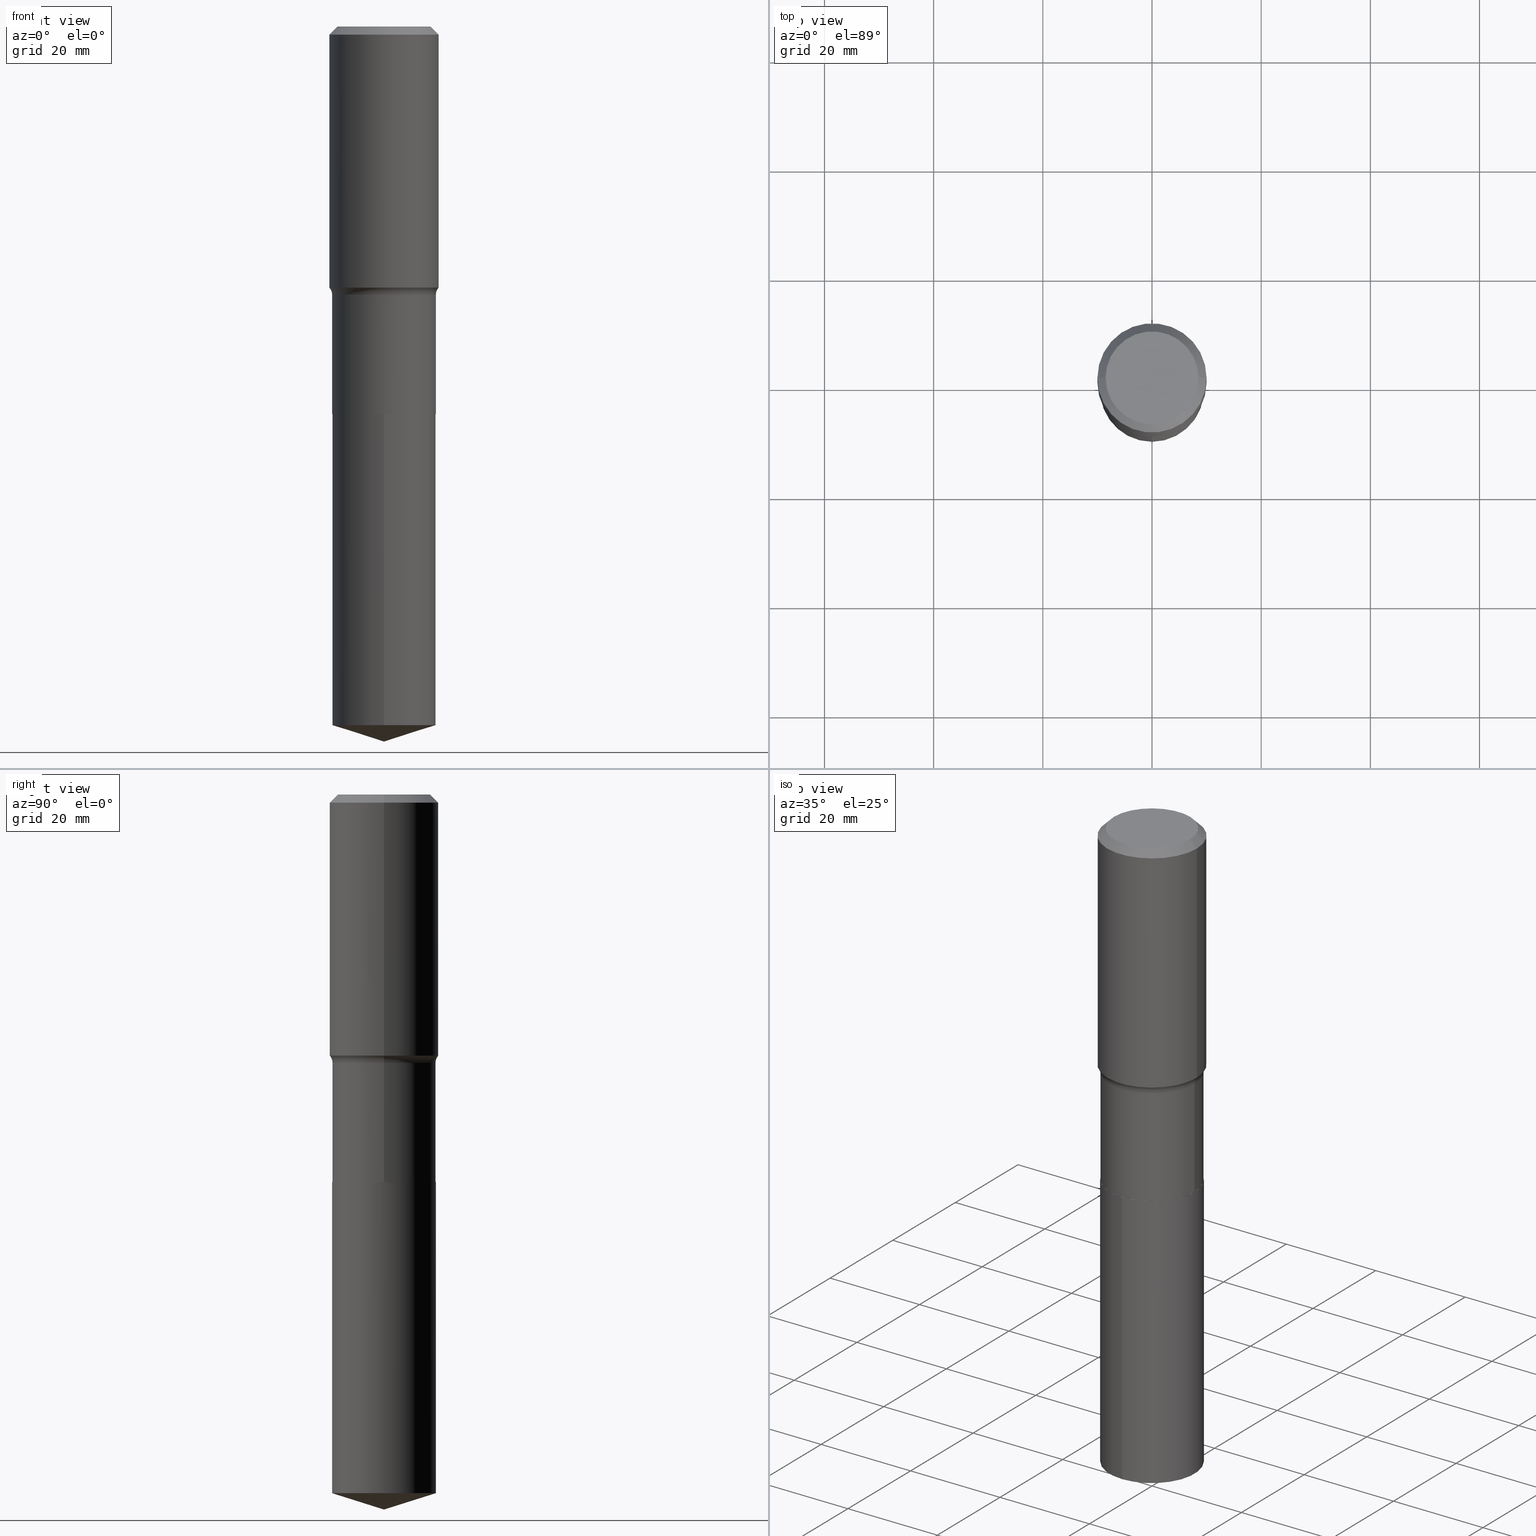
[diagram: canonical four-view strip — front | top / right | iso, engineering-drawing reading convention]
A machine part, canonical four-view strip (front | top / right | iso — engineering-drawing reading convention). The complete STEP part file that produces these views, byte-faithful:
ISO-10303-21;
HEADER;
FILE_DESCRIPTION (( 'STEP AP203' ),
    '1' );
FILE_NAME ('63210.STEP',
    '2024-04-19T15:06:42',
    ( '' ),
    ( '' ),
    'SwSTEP 2.0',
    'SolidWorks 2023',
    '' );
FILE_SCHEMA (( 'CONFIG_CONTROL_DESIGN' ));
ENDSEC;

DATA;
#1 = LOCAL_TIME ( 11, 6, 42.00000000000000000, #102 ) ;
#2 = DATE_AND_TIME ( #339, #312 ) ;
#3 = PERSON_AND_ORGANIZATION ( #443, #316 ) ;
#4 = CIRCLE ( 'NONE', #373, 0.3937000000000000499 ) ;
#5 = AXIS2_PLACEMENT_3D ( 'NONE', #347, #419, #97 ) ;
#6 = ADVANCED_FACE ( 'NONE', ( #117 ), #229, .T. ) ;
#7 = ORIENTED_EDGE ( 'NONE', *, *, #37, .F. ) ;
#8 = ORIENTED_EDGE ( 'NONE', *, *, #349, .F. ) ;
#9 = DIRECTION ( 'NONE',  ( -2.438088387897960049E-29, 3.491481338843145188E-15, 1.000000000000000000 ) ) ;
#10 = ORIENTED_EDGE ( 'NONE', *, *, #186, .F. ) ;
#11 = CARTESIAN_POINT ( 'NONE',  ( -0.3735000000000000542, -7.105860668404271392E-15, -2.795300000000000118 ) ) ;
#12 = AXIS2_PLACEMENT_3D ( 'NONE', #210, #248, #400 ) ;
#13 = ORIENTED_EDGE ( 'NONE', *, *, #30, .F. ) ;
#14 = EDGE_CURVE ( 'NONE', #162, #92, #346, .T. ) ;
#15 = EDGE_LOOP ( 'NONE', ( #159, #377 ) ) ;
#16 = DIRECTION ( 'NONE',  ( -1.000000000000000000, 7.105427357601001859E-15, 0.000000000000000000 ) ) ;
#17 = DIRECTION ( 'NONE',  ( 6.776566513254266815E-15, 0.9537169507482301523, 0.3007057995042629606 ) ) ;
#18 = CARTESIAN_POINT ( 'NONE',  ( 6.835818953929312828E-29, -9.759737786468245182E-15, -2.795300000000000118 ) ) ;
#19 = EDGE_CURVE ( 'NONE', #313, #237, #464, .T. ) ;
#20 = DIRECTION ( 'NONE',  ( -2.445876877377113776E-29, 3.490896957670264327E-15, 1.000000000000000000 ) ) ;
#21 = LINE ( 'NONE', #285, #325 ) ;
#22 = CARTESIAN_POINT ( 'NONE',  ( -8.368089593739794722E-28, 1.194309535173775684E-13, 34.21257874015748257 ) ) ;
#23 = CARTESIAN_POINT ( 'NONE',  ( 6.835818953929312828E-29, -9.759737786468245182E-15, -2.795300000000000118 ) ) ;
#24 = AXIS2_PLACEMENT_3D ( 'NONE', #398, #433, #233 ) ;
#25 = APPROVAL ( #296, 'UNSPECIFIED' ) ;
#26 = LINE ( 'NONE', #61, #68 ) ;
#27 = VECTOR ( 'NONE', #438, 39.37007874015748143 ) ;
#28 = CARTESIAN_POINT ( 'NONE',  ( 0.3739999999999998881, -9.367993580250032960E-15, -1.935099999999999820 ) ) ;
#29 = AXIS2_PLACEMENT_3D ( 'NONE', #255, #439, #406 ) ;
#30 = EDGE_CURVE ( 'NONE', #455, #467, #152, .T. ) ;
#31 = DIRECTION ( 'NONE',  ( -2.445468806185136597E-29, 3.491481338843145583E-15, 1.000000000000000000 ) ) ;
#32 =( LENGTH_UNIT ( ) NAMED_UNIT ( * ) SI_UNIT ( $, .METRE. ) );
#33 = DIRECTION ( 'NONE',  ( -2.445468806185136597E-29, 3.491481338843145583E-15, 1.000000000000000000 ) ) ;
#34 =( NAMED_UNIT ( * ) PLANE_ANGLE_UNIT ( ) SI_UNIT ( $, .RADIAN. ) );
#35 = CARTESIAN_POINT ( 'NONE',  ( 4.605507269192441641E-29, -6.575443794507560205E-15, -1.883281952950732974 ) ) ;
#36 = ORIENTED_EDGE ( 'NONE', *, *, #47, .F. ) ;
#37 = EDGE_CURVE ( 'NONE', #455, #429, #351, .T. ) ;
#38 = CIRCLE ( 'NONE', #78, 0.3739999999999999991 ) ;
#39 = FACE_OUTER_BOUND ( 'NONE', #87, .T. ) ;
#40 = EDGE_LOOP ( 'NONE', ( #390, #293, #462 ) ) ;
#41 = LOCAL_TIME ( 11, 6, 42.00000000000000000, #379 ) ;
#42 = APPROVAL_STATUS ( 'not_yet_approved' ) ;
#43 = ORIENTED_EDGE ( 'NONE', *, *, #259, .F. ) ;
#44 = MANIFOLD_SOLID_BREP ( 'Body-Move/Copy2[1]', #238 ) ;
#45 = EDGE_LOOP ( 'NONE', ( #417, #124, #195, #230 ) ) ;
#46 = CIRCLE ( 'NONE', #214, 0.3739999999999999991 ) ;
#47 = EDGE_CURVE ( 'NONE', #386, #309, #4, .T. ) ;
#48 = ORIENTED_EDGE ( 'NONE', *, *, #163, .T. ) ;
#49 = CYLINDRICAL_SURFACE ( 'NONE', #428, 0.3739999999999999991 ) ;
#50 = ORIENTED_EDGE ( 'NONE', *, *, #383, .T. ) ;
#51 = PLANE ( 'NONE',  #114 ) ;
#52 = DESIGN_CONTEXT ( 'detailed design', #369, 'design' ) ;
#53 = ORIENTED_EDGE ( 'NONE', *, *, #448, .F. ) ;
#54 = CARTESIAN_POINT ( 'NONE',  ( 0.3735000000000000542, -1.236787434658406618E-14, -2.795300000000000118 ) ) ;
#55 = AXIS2_PLACEMENT_3D ( 'NONE', #367, #31, #175 ) ;
#56 = VECTOR ( 'NONE', #436, 39.37007874015748143 ) ;
#57 = ORIENTED_EDGE ( 'NONE', *, *, #186, .T. ) ;
#58 = LINE ( 'NONE', #397, #130 ) ;
#59 = FACE_OUTER_BOUND ( 'NONE', #40, .T. ) ;
#60 = AXIS2_PLACEMENT_3D ( 'NONE', #287, #487, #491 ) ;
#61 = CARTESIAN_POINT ( 'NONE',  ( 1.261462999993133841E-28, -1.800430105918438499E-14, -5.157499999999999751 ) ) ;
#62 = DIRECTION ( 'NONE',  ( 1.000000000000000000, -6.982962677686266711E-15, 4.883557194083113462E-29 ) ) ;
#63 = DIRECTION ( 'NONE',  ( -2.445468806185136877E-29, 3.491481338843145188E-15, 1.000000000000000000 ) ) ;
#64 = APPROVAL_PERSON_ORGANIZATION ( #221, #182, #116 ) ;
#65 = CARTESIAN_POINT ( 'NONE',  ( 6.835818953929312828E-29, -9.759737786468245182E-15, -2.795300000000000118 ) ) ;
#66 = APPROVAL_DATE_TIME ( #374, #25 ) ;
#67 = EDGE_CURVE ( 'NONE', #128, #162, #294, .T. ) ;
#68 = VECTOR ( 'NONE', #17, 39.37007874015748854 ) ;
#69 = PRODUCT_DEFINITION ( 'UNKNOWN', '', #275, #52 ) ;
#70 = DIRECTION ( 'NONE',  ( -2.445876877377113776E-29, 3.490896957670264327E-15, 1.000000000000000000 ) ) ;
#71 = DIRECTION ( 'NONE',  ( 1.000000000000000000, -6.982962677686265133E-15, 0.000000000000000000 ) ) ;
#72 = EDGE_LOOP ( 'NONE', ( #57, #48 ) ) ;
#73 = DIRECTION ( 'NONE',  ( -2.445468806185136597E-29, 3.491481338843145583E-15, 1.000000000000000000 ) ) ;
#74 = EDGE_CURVE ( 'NONE', #305, #193, #139, .T. ) ;
#75 =( CONVERSION_BASED_UNIT ( 'INCH', #452 ) LENGTH_UNIT ( ) NAMED_UNIT ( #127 ) );
#76 = VERTEX_POINT ( 'NONE', #212 ) ;
#77 = PERSON_AND_ORGANIZATION ( #443, #316 ) ;
#78 = AXIS2_PLACEMENT_3D ( 'NONE', #146, #70, #292 ) ;
#79 = DATE_TIME_ROLE ( 'classification_date' ) ;
#80 = CC_DESIGN_DATE_AND_TIME_ASSIGNMENT ( #250, #409, ( #69 ) ) ;
#81 = EDGE_CURVE ( 'NONE', #258, #193, #26, .T. ) ;
#82 = DIRECTION ( 'NONE',  ( 1.000000000000000000, -6.982962677686265922E-15, 0.000000000000000000 ) ) ;
#83 = AXIS2_PLACEMENT_3D ( 'NONE', #246, #96, #94 ) ;
#84 = DIRECTION ( 'NONE',  ( -2.445876877377114056E-29, 3.490896957670264327E-15, 1.000000000000000000 ) ) ;
#85 = ORIENTED_EDGE ( 'NONE', *, *, #157, .T. ) ;
#86 = LINE ( 'NONE', #158, #388 ) ;
#87 = EDGE_LOOP ( 'NONE', ( #189, #301, #197, #201 ) ) ;
#88 = CARTESIAN_POINT ( 'NONE',  ( 6.834596219526220026E-29, -9.757992045798822890E-15, -2.794799999999999951 ) ) ;
#89 = EDGE_LOOP ( 'NONE', ( #485, #181, #470 ) ) ;
#90 = CIRCLE ( 'NONE', #12, 0.3735000000000000542 ) ;
#91 = AXIS2_PLACEMENT_3D ( 'NONE', #366, #99, #177 ) ;
#92 = VERTEX_POINT ( 'NONE', #393 ) ;
#93 = FACE_OUTER_BOUND ( 'NONE', #109, .T. ) ;
#94 = DIRECTION ( 'NONE',  ( -6.982962677686266711E-15, -1.000000000000000000, 2.921762560068730595E-15 ) ) ;
#95 = LINE ( 'NONE', #463, #56 ) ;
#96 = DIRECTION ( 'NONE',  ( -2.445876877377113776E-29, 3.490896957670264327E-15, 1.000000000000000000 ) ) ;
#97 = DIRECTION ( 'NONE',  ( 6.982962677686265922E-15, 1.000000000000000000, -3.490896957670264327E-15 ) ) ;
#98 = CARTESIAN_POINT ( 'NONE',  ( 0.4520000000000000129, -9.912664669109561006E-15, -1.935099999999999820 ) ) ;
#99 = DIRECTION ( 'NONE',  ( 2.445468806185136597E-29, -3.491481338843145583E-15, -1.000000000000000000 ) ) ;
#100 = EDGE_CURVE ( 'NONE', #128, #467, #58, .T. ) ;
#101 = DIRECTION ( 'NONE',  ( 7.105427357601001859E-15, 1.000000000000000000, -3.491481338843145583E-15 ) ) ;
#102 = COORDINATED_UNIVERSAL_TIME_OFFSET ( 5, 0, .BEHIND. ) ;
#103 = CARTESIAN_POINT ( 'NONE',  ( 4.732226686848857494E-29, -6.756365538795370536E-15, -1.935099999999999820 ) ) ;
#104 = AXIS2_PLACEMENT_3D ( 'NONE', #65, #359, #142 ) ;
#105 = CARTESIAN_POINT ( 'NONE',  ( 0.3937000000000001609, -9.324636200712642633E-15, -1.883281952950732974 ) ) ;
#106 = EDGE_CURVE ( 'NONE', #76, #161, #198, .T. ) ;
#107 = DIRECTION ( 'NONE',  ( -2.445468806185136597E-29, 3.491481338843145583E-15, 1.000000000000000000 ) ) ;
#108 = PERSON_AND_ORGANIZATION ( #443, #316 ) ;
#109 = EDGE_LOOP ( 'NONE', ( #375, #129 ) ) ;
#110 = DIRECTION ( 'NONE',  ( 0.000000000000000000, 0.000000000000000000, 1.000000000000000000 ) ) ;
#111 = ORIENTED_EDGE ( 'NONE', *, *, #251, .F. ) ;
#112 = DATE_AND_TIME ( #342, #41 ) ;
#113 = VECTOR ( 'NONE', #84, 39.37007874015748143 ) ;
#114 = AXIS2_PLACEMENT_3D ( 'NONE', #23, #9, #308 ) ;
#115 = EDGE_CURVE ( 'NONE', #237, #313, #90, .T. ) ;
#116 = APPROVAL_ROLE ( '' ) ;
#117 = FACE_OUTER_BOUND ( 'NONE', #372, .T. ) ;
#118 = LINE ( 'NONE', #11, #131 ) ;
#119 = ORIENTED_EDGE ( 'NONE', *, *, #430, .T. ) ;
#120 = AXIS2_PLACEMENT_3D ( 'NONE', #254, #332, #295 ) ;
#121 = DIRECTION ( 'NONE',  ( 0.7071067811864026886, -2.468850131080739687E-15, 0.7071067811866923458 ) ) ;
#122 = ADVANCED_FACE ( 'NONE', ( #173 ), #172, .T. ) ;
#123 = PRODUCT ( '63210', '63210', '', ( #401 ) ) ;
#124 = ORIENTED_EDGE ( 'NONE', *, *, #213, .F. ) ;
#125 = FACE_OUTER_BOUND ( 'NONE', #348, .T. ) ;
#126 = LOCAL_TIME ( 11, 6, 42.00000000000000000, #227 ) ;
#127 = DIMENSIONAL_EXPONENTS ( 1.000000000000000000, 0.000000000000000000, 0.000000000000000000, 0.000000000000000000, 0.000000000000000000, 0.000000000000000000, 0.000000000000000000 ) ;
#128 = VERTEX_POINT ( 'NONE', #167 ) ;
#129 = ORIENTED_EDGE ( 'NONE', *, *, #106, .T. ) ;
#130 = VECTOR ( 'NONE', #63, 39.37007874015748143 ) ;
#131 = VECTOR ( 'NONE', #194, 39.37007874015748143 ) ;
#132 = CARTESIAN_POINT ( 'NONE',  ( -0.4520000000000000129, -3.544712373159717604E-15, -1.935099999999999820 ) ) ;
#133 = ADVANCED_FACE ( 'NONE', ( #59 ), #147, .T. ) ;
#134 = SECURITY_CLASSIFICATION ( '', '', #376 ) ;
#135 = CARTESIAN_POINT ( 'NONE',  ( -8.368089593739794722E-28, 1.194309535173775684E-13, 34.21257874015748257 ) ) ;
#136 = PLANE ( 'NONE',  #5 ) ;
#137 = DIRECTION ( 'NONE',  ( -2.445468806185136597E-29, 3.491481338843145583E-15, 1.000000000000000000 ) ) ;
#138 = DIRECTION ( 'NONE',  ( -2.445468806185136597E-29, 3.491481338843145583E-15, 1.000000000000000000 ) ) ;
#139 = CIRCLE ( 'NONE', #83, 0.3739999999999999991 ) ;
#140 = DIRECTION ( 'NONE',  ( -6.982962677686266711E-15, -1.000000000000000000, 3.491481338843145583E-15 ) ) ;
#141 = FACE_OUTER_BOUND ( 'NONE', #426, .T. ) ;
#142 = DIRECTION ( 'NONE',  ( 1.000000000000000000, -6.982962677686265922E-15, 0.000000000000000000 ) ) ;
#143 = CARTESIAN_POINT ( 'NONE',  ( 0.000000000000000000, 0.000000000000000000, 0.000000000000000000 ) ) ;
#144 = APPLICATION_PROTOCOL_DEFINITION ( 'international standard', 'config_control_design', 1994, #481 ) ;
#145 = ORIENTED_EDGE ( 'NONE', *, *, #176, .F. ) ;
#146 = CARTESIAN_POINT ( 'NONE',  ( 1.232504723924267738E-28, -1.759428191188926946E-14, -5.039578252959262983 ) ) ;
#147 = CONICAL_SURFACE ( 'NONE', #190, 124.8659371009169945, 1.265363707695896123 ) ;
#148 = APPROVAL_STATUS ( 'not_yet_approved' ) ;
#149 = CC_DESIGN_PERSON_AND_ORGANIZATION_ASSIGNMENT ( #3, #265, ( #275 ) ) ;
#150 = APPROVAL_ROLE ( '' ) ;
#151 = EDGE_CURVE ( 'NONE', #429, #386, #243, .T. ) ;
#152 = CIRCLE ( 'NONE', #447, 0.07800000000000002764 ) ;
#153 = ORIENTED_EDGE ( 'NONE', *, *, #364, .T. ) ;
#154 = ADVANCED_BREP_SHAPE_REPRESENTATION ( '63210', ( #44, #188, #323 ), #253 ) ;
#155 = EDGE_LOOP ( 'NONE', ( #234, #278, #53, #111 ) ) ;
#156 = EDGE_LOOP ( 'NONE', ( #145, #7, #184, #222 ) ) ;
#157 = EDGE_CURVE ( 'NONE', #92, #467, #180, .T. ) ;
#158 = CARTESIAN_POINT ( 'NONE',  ( 0.3937000000000000499, -2.907167492188035018E-15, -0.05905500000000032251 ) ) ;
#159 = ORIENTED_EDGE ( 'NONE', *, *, #19, .F. ) ;
#160 = CARTESIAN_POINT ( 'NONE',  ( 2.657429831742897751E-15, 0.3739999999999902847, -2.795300000000001006 ) ) ;
#161 = VERTEX_POINT ( 'NONE', #322 ) ;
#162 = VERTEX_POINT ( 'NONE', #474 ) ;
#163 = EDGE_CURVE ( 'NONE', #415, #270, #46, .T. ) ;
#164 = DIRECTION ( 'NONE',  ( 1.000000000000000000, -6.982962677686265133E-15, 0.000000000000000000 ) ) ;
#165 = CARTESIAN_POINT ( 'NONE',  ( -1.001697619218025096E-46, 1.430158722866394644E-32, 4.096137381448122233E-18 ) ) ;
#166 = CARTESIAN_POINT ( 'NONE',  ( 0.000000000000000000, 0.000000000000000000, 0.000000000000000000 ) ) ;
#167 = CARTESIAN_POINT ( 'NONE',  ( 0.3739999999999999991, -1.236962008725348689E-14, -2.794799999999999951 ) ) ;
#168 = DIRECTION ( 'NONE',  ( -6.659769872151641555E-15, -0.9537169507482280428, 0.3007057995042696219 ) ) ;
#169 = DIRECTION ( 'NONE',  ( 1.000000000000000000, -6.982962677686267499E-15, 0.000000000000000000 ) ) ;
#170 = CARTESIAN_POINT ( 'NONE',  ( 0.3735000000000000542, -1.236787434658406618E-14, -2.795300000000000118 ) ) ;
#171 = CONICAL_SURFACE ( 'NONE', #24, 0.3937000000000000499, 0.7853981633974453924 ) ;
#172 = CONICAL_SURFACE ( 'NONE', #380, 124.8659371009169945, 1.265363707695896123 ) ;
#173 = FACE_OUTER_BOUND ( 'NONE', #89, .T. ) ;
#174 = FACE_OUTER_BOUND ( 'NONE', #331, .T. ) ;
#175 = DIRECTION ( 'NONE',  ( 1.000000000000000000, -6.982962677686267499E-15, 0.000000000000000000 ) ) ;
#176 = EDGE_CURVE ( 'NONE', #429, #92, #471, .T. ) ;
#177 = DIRECTION ( 'NONE',  ( -1.000000000000000000, 6.982962677686267499E-15, 0.000000000000000000 ) ) ;
#178 = FACE_OUTER_BOUND ( 'NONE', #460, .T. ) ;
#179 = LINE ( 'NONE', #405, #352 ) ;
#180 = CIRCLE ( 'NONE', #427, 0.3739999999999998881 ) ;
#181 = ORIENTED_EDGE ( 'NONE', *, *, #81, .T. ) ;
#182 = APPROVAL ( #148, 'UNSPECIFIED' ) ;
#183 = COORDINATED_UNIVERSAL_TIME_OFFSET ( 5, 0, .BEHIND. ) ;
#184 = ORIENTED_EDGE ( 'NONE', *, *, #30, .T. ) ;
#185 = CC_DESIGN_APPROVAL ( #204, ( #134 ) ) ;
#186 = EDGE_CURVE ( 'NONE', #270, #415, #490, .T. ) ;
#187 = SHAPE_DEFINITION_REPRESENTATION ( #266, #154 ) ;
#188 = MANIFOLD_SOLID_BREP ( 'Body-Move/Copy2[2]', #207 ) ;
#189 = ORIENTED_EDGE ( 'NONE', *, *, #383, .F. ) ;
#190 = AXIS2_PLACEMENT_3D ( 'NONE', #135, #441, #356 ) ;
#191 = ORIENTED_EDGE ( 'NONE', *, *, #176, .T. ) ;
#192 = CONICAL_SURFACE ( 'NONE', #91, 0.3937000000000000499, 0.7853981633974453924 ) ;
#193 = VERTEX_POINT ( 'NONE', #432 ) ;
#194 = DIRECTION ( 'NONE',  ( -0.7071067811864026886, 7.493145998869830357E-15, 0.7071067811866923458 ) ) ;
#195 = ORIENTED_EDGE ( 'NONE', *, *, #349, .T. ) ;
#196 = FACE_OUTER_BOUND ( 'NONE', #489, .T. ) ;
#197 = ORIENTED_EDGE ( 'NONE', *, *, #341, .T. ) ;
#198 = CIRCLE ( 'NONE', #396, 0.3346450000000000258 ) ;
#199 = DIRECTION ( 'NONE',  ( -6.982962677686266711E-15, -1.000000000000000000, 2.921762560068730595E-15 ) ) ;
#200 = ADVANCED_FACE ( 'NONE', ( #93 ), #394, .F. ) ;
#201 = ORIENTED_EDGE ( 'NONE', *, *, #430, .F. ) ;
#202 = ADVANCED_FACE ( 'NONE', ( #330 ), #286, .F. ) ;
#203 = DIRECTION ( 'NONE',  ( 1.000000000000000000, -6.982962677686266711E-15, 0.000000000000000000 ) ) ;
#204 = APPROVAL ( #42, 'UNSPECIFIED' ) ;
#205 = DIRECTION ( 'NONE',  ( 1.000000000000000000, -6.982962677686255667E-15, 0.000000000000000000 ) ) ;
#206 = CC_DESIGN_PERSON_AND_ORGANIZATION_ASSIGNMENT ( #77, #333, ( #123 ) ) ;
#207 = CLOSED_SHELL ( 'NONE', ( #6, #434, #420, #202, #484, #416, #344, #239, #378, #200, #392, #469 ) ) ;
#208 = CARTESIAN_POINT ( 'NONE',  ( 1.444171603492640145E-30, -2.061894304653831000E-16, -0.05905500000000032251 ) ) ;
#209 = DIRECTION ( 'NONE',  ( -6.982962677686266711E-15, -1.000000000000000000, 2.921762560068730595E-15 ) ) ;
#210 = CARTESIAN_POINT ( 'NONE',  ( 6.835818953929312828E-29, -9.759737786468245182E-15, -2.795300000000000118 ) ) ;
#211 = DIRECTION ( 'NONE',  ( 0.7071067811865454633, -7.319954787623248157E-15, -0.7071067811865495711 ) ) ;
#212 = CARTESIAN_POINT ( 'NONE',  ( 0.3346450000000000258, -2.601499422326144794E-15, 4.096137381465388580E-18 ) ) ;
#213 = EDGE_CURVE ( 'NONE', #161, #76, #245, .T. ) ;
#214 = AXIS2_PLACEMENT_3D ( 'NONE', #242, #328, #482 ) ;
#215 = CARTESIAN_POINT ( 'NONE',  ( -2.611628041454595371E-15, -0.3740000000000097691, -2.795299999999998786 ) ) ;
#216 = EDGE_CURVE ( 'NONE', #193, #305, #38, .T. ) ;
#217 = DIRECTION ( 'NONE',  ( 1.000000000000000000, -6.982962677686266711E-15, 4.876176775795935793E-29 ) ) ;
#218 = CARTESIAN_POINT ( 'NONE',  ( 0.000000000000000000, 0.000000000000000000, 0.000000000000000000 ) ) ;
#219 = ORIENTED_EDGE ( 'NONE', *, *, #315, .F. ) ;
#220 = DIRECTION ( 'NONE',  ( -2.445876877377114056E-29, 3.490896957670264327E-15, 1.000000000000000000 ) ) ;
#221 = PERSON_AND_ORGANIZATION ( #443, #316 ) ;
#222 = ORIENTED_EDGE ( 'NONE', *, *, #291, .T. ) ;
#223 = AXIS2_PLACEMENT_3D ( 'NONE', #143, #73, #217 ) ;
#224 = PERSON_AND_ORGANIZATION ( #443, #316 ) ;
#225 = ORIENTED_EDGE ( 'NONE', *, *, #14, .T. ) ;
#226 = PERSON_AND_ORGANIZATION ( #443, #316 ) ;
#227 = COORDINATED_UNIVERSAL_TIME_OFFSET ( 5, 0, .BEHIND. ) ;
#228 = ORIENTED_EDGE ( 'NONE', *, *, #276, .T. ) ;
#229 = CONICAL_SURFACE ( 'NONE', #279, 0.3735000000000000542, 0.7853981633972434429 ) ;
#230 = ORIENTED_EDGE ( 'NONE', *, *, #47, .T. ) ;
#231 = FACE_OUTER_BOUND ( 'NONE', #232, .T. ) ;
#232 = EDGE_LOOP ( 'NONE', ( #345, #423, #10, #43 ) ) ;
#233 = DIRECTION ( 'NONE',  ( -1.000000000000000000, 6.982962677686267499E-15, 0.000000000000000000 ) ) ;
#234 = ORIENTED_EDGE ( 'NONE', *, *, #37, .T. ) ;
#235 = DIRECTION ( 'NONE',  ( -2.445468806185136597E-29, 3.491481338843145583E-15, 1.000000000000000000 ) ) ;
#236 = AXIS2_PLACEMENT_3D ( 'NONE', #422, #138, #62 ) ;
#237 = VERTEX_POINT ( 'NONE', #370 ) ;
#238 = CLOSED_SHELL ( 'NONE', ( #334, #122, #133, #327, #361 ) ) ;
#239 = ADVANCED_FACE ( 'NONE', ( #178 ), #256, .T. ) ;
#240 = VECTOR ( 'NONE', #121, 39.37007874015748143 ) ;
#241 = ORIENTED_EDGE ( 'NONE', *, *, #259, .T. ) ;
#242 = CARTESIAN_POINT ( 'NONE',  ( 6.835818953929312828E-29, -9.759737786468245182E-15, -2.795300000000000118 ) ) ;
#243 = LINE ( 'NONE', #314, #358 ) ;
#244 = CYLINDRICAL_SURFACE ( 'NONE', #472, 0.3937000000000001054 ) ;
#245 = CIRCLE ( 'NONE', #120, 0.3346450000000000258 ) ;
#246 = CARTESIAN_POINT ( 'NONE',  ( 1.232504723924267738E-28, -1.759428191188926946E-14, -5.039578252959262983 ) ) ;
#247 = DIRECTION ( 'NONE',  ( -2.445876877377113776E-29, 3.490896957670264327E-15, 1.000000000000000000 ) ) ;
#248 = DIRECTION ( 'NONE',  ( -2.445468806185136597E-29, 3.491481338843145583E-15, 1.000000000000000000 ) ) ;
#249 = CARTESIAN_POINT ( 'NONE',  ( -0.3739999999999999436, 2.657429831742774294E-15, -1.839681723755334340E-29 ) ) ;
#250 = DATE_AND_TIME ( #257, #1 ) ;
#251 = EDGE_CURVE ( 'NONE', #455, #309, #179, .T. ) ;
#252 = AXIS2_PLACEMENT_3D ( 'NONE', #132, #101, #16 ) ;
#253 =( GEOMETRIC_REPRESENTATION_CONTEXT ( 3 ) GLOBAL_UNCERTAINTY_ASSIGNED_CONTEXT ( ( #410 ) ) GLOBAL_UNIT_ASSIGNED_CONTEXT ( ( #75, #34, #450 ) ) REPRESENTATION_CONTEXT ( 'NONE', 'WORKASPACE' ) );
#254 = CARTESIAN_POINT ( 'NONE',  ( -1.001697619218025096E-46, 1.430158722866394644E-32, 4.096137381448122233E-18 ) ) ;
#255 = CARTESIAN_POINT ( 'NONE',  ( 6.835818953929312828E-29, -9.759737786468245182E-15, -2.795300000000000118 ) ) ;
#256 = CYLINDRICAL_SURFACE ( 'NONE', #223, 0.3937000000000001054 ) ;
#257 = CALENDAR_DATE ( 2024, 19, 4 ) ;
#258 = VERTEX_POINT ( 'NONE', #444 ) ;
#259 = EDGE_CURVE ( 'NONE', #305, #270, #336, .T. ) ;
#260 = AXIS2_PLACEMENT_3D ( 'NONE', #35, #33, #402 ) ;
#261 = CIRCLE ( 'NONE', #280, 0.3739999999999999991 ) ;
#262 = PERSON_AND_ORGANIZATION ( #443, #316 ) ;
#263 = ORIENTED_EDGE ( 'NONE', *, *, #163, .F. ) ;
#264 = PERSON_AND_ORGANIZATION ( #443, #316 ) ;
#265 = PERSON_AND_ORGANIZATION_ROLE ( 'design_supplier' ) ;
#266 = PRODUCT_DEFINITION_SHAPE ( 'NONE', 'NONE',  #69 ) ;
#267 = CARTESIAN_POINT ( 'NONE',  ( 6.835818953929312828E-29, -9.759737786468245182E-15, -2.795300000000000118 ) ) ;
#268 = LINE ( 'NONE', #461, #113 ) ;
#269 = AXIS2_PLACEMENT_3D ( 'NONE', #478, #281, #431 ) ;
#270 = VERTEX_POINT ( 'NONE', #215 ) ;
#271 = CARTESIAN_POINT ( 'NONE',  ( 0.3937000000000000499, -2.955381836670466193E-15, -0.05905500000000032251 ) ) ;
#272 = CC_DESIGN_PERSON_AND_ORGANIZATION_ASSIGNMENT ( #108, #442, ( #69 ) ) ;
#273 = ORIENTED_EDGE ( 'NONE', *, *, #448, .T. ) ;
#274 = DIRECTION ( 'NONE',  ( 1.000000000000000000, -6.982962677686266711E-15, 4.876176775795935793E-29 ) ) ;
#275 = PRODUCT_DEFINITION_FORMATION_WITH_SPECIFIED_SOURCE ( 'ANY', '', #123, .NOT_KNOWN. ) ;
#276 = EDGE_CURVE ( 'NONE', #429, #455, #479, .T. ) ;
#277 = ORIENTED_EDGE ( 'NONE', *, *, #216, .T. ) ;
#278 = ORIENTED_EDGE ( 'NONE', *, *, #151, .T. ) ;
#279 = AXIS2_PLACEMENT_3D ( 'NONE', #267, #418, #82 ) ;
#280 = AXIS2_PLACEMENT_3D ( 'NONE', #88, #235, #71 ) ;
#281 = DIRECTION ( 'NONE',  ( -2.445876877377113776E-29, 3.490896957670264327E-15, 1.000000000000000000 ) ) ;
#282 = DIRECTION ( 'NONE',  ( -2.445468806185136877E-29, 3.491481338843145188E-15, 1.000000000000000000 ) ) ;
#283 = DIRECTION ( 'NONE',  ( -2.445468806185136597E-29, 3.491481338843145583E-15, 1.000000000000000000 ) ) ;
#284 = CARTESIAN_POINT ( 'NONE',  ( 4.605507269192441641E-29, -6.575443794507560205E-15, -1.883281952950732974 ) ) ;
#285 = CARTESIAN_POINT ( 'NONE',  ( 1.261232863226659636E-28, -1.800756810056949723E-14, -5.157499999999999751 ) ) ;
#286 = TOROIDAL_SURFACE ( 'NONE', #335, 0.4520000000000000129, 0.07800000000000002764 ) ;
#287 = CARTESIAN_POINT ( 'NONE',  ( -5.008488096090125481E-47, 7.150793614331973222E-33, 2.048068690724061116E-18 ) ) ;
#288 = DIRECTION ( 'NONE',  ( -2.445468806185136597E-29, 3.491481338843145583E-15, 1.000000000000000000 ) ) ;
#289 = DIRECTION ( 'NONE',  ( -2.445468806185136597E-29, 3.491481338843145583E-15, 1.000000000000000000 ) ) ;
#290 = APPROVAL_ROLE ( '' ) ;
#291 = EDGE_CURVE ( 'NONE', #467, #92, #437, .T. ) ;
#292 = DIRECTION ( 'NONE',  ( -6.982962677686266711E-15, -1.000000000000000000, 2.921762560068730595E-15 ) ) ;
#293 = ORIENTED_EDGE ( 'NONE', *, *, #306, .T. ) ;
#294 = CIRCLE ( 'NONE', #412, 0.3739999999999999991 ) ;
#295 = DIRECTION ( 'NONE',  ( 1.000000000000000000, -6.982962677686267499E-15, 4.876152824003125403E-29 ) ) ;
#296 = APPROVAL_STATUS ( 'not_yet_approved' ) ;
#297 = APPROVAL_PERSON_ORGANIZATION ( #224, #25, #290 ) ;
#298 = CARTESIAN_POINT ( 'NONE',  ( 1.444171603492640145E-30, -2.061894304653831000E-16, -0.05905500000000032251 ) ) ;
#299 = ORIENTED_EDGE ( 'NONE', *, *, #14, .F. ) ;
#300 = APPROVAL_DATE_TIME ( #2, #204 ) ;
#301 = ORIENTED_EDGE ( 'NONE', *, *, #115, .T. ) ;
#302 = CIRCLE ( 'NONE', #389, 0.3937000000000000499 ) ;
#303 = AXIS2_PLACEMENT_3D ( 'NONE', #218, #288, #329 ) ;
#304 = DATE_AND_TIME ( #414, #126 ) ;
#305 = VERTEX_POINT ( 'NONE', #483 ) ;
#306 = EDGE_CURVE ( 'NONE', #258, #305, #21, .T. ) ;
#307 = ORIENTED_EDGE ( 'NONE', *, *, #151, .F. ) ;
#308 = DIRECTION ( 'NONE',  ( 1.000000000000000000, -6.982962677686265922E-15, 4.876176775795935793E-29 ) ) ;
#309 = VERTEX_POINT ( 'NONE', #271 ) ;
#310 = CYLINDRICAL_SURFACE ( 'NONE', #413, 0.3739999999999999436 ) ;
#311 = ORIENTED_EDGE ( 'NONE', *, *, #251, .T. ) ;
#312 = LOCAL_TIME ( 11, 6, 42.00000000000000000, #183 ) ;
#313 = VERTEX_POINT ( 'NONE', #170 ) ;
#314 = CARTESIAN_POINT ( 'NONE',  ( -0.3937000000000001054, 2.797406750687515181E-15, -1.936584745033357016E-29 ) ) ;
#315 = EDGE_CURVE ( 'NONE', #193, #415, #268, .T. ) ;
#316 = ORGANIZATION ( 'UNSPECIFIED', 'UNSPECIFIED', '' ) ;
#317 = DIRECTION ( 'NONE',  ( 1.000000000000000000, -6.982962677686267499E-15, 4.876152824003125403E-29 ) ) ;
#318 = CARTESIAN_POINT ( 'NONE',  ( -0.3937000000000001609, -3.778037043820043841E-15, -1.883281952950732974 ) ) ;
#319 = PRODUCT_RELATED_PRODUCT_CATEGORY ( 'detail', '', ( #123 ) ) ;
#320 = CARTESIAN_POINT ( 'NONE',  ( 4.732226686848857494E-29, -6.756365538795370536E-15, -1.935099999999999820 ) ) ;
#321 = FACE_OUTER_BOUND ( 'NONE', #156, .T. ) ;
#322 = CARTESIAN_POINT ( 'NONE',  ( -0.3346450000000000258, 2.439908260507010921E-15, 4.096137381431419798E-18 ) ) ;
#323 = AXIS2_PLACEMENT_3D ( 'NONE', #488, #110, #324 ) ;
#324 = DIRECTION ( 'NONE',  ( 1.000000000000000000, 0.000000000000000000, 0.000000000000000000 ) ) ;
#325 = VECTOR ( 'NONE', #168, 39.37007874015748143 ) ;
#326 = TOROIDAL_SURFACE ( 'NONE', #236, 0.4520000000000000129, 0.07800000000000002764 ) ;
#327 = ADVANCED_FACE ( 'NONE', ( #196 ), #382, .T. ) ;
#328 = DIRECTION ( 'NONE',  ( -2.445876877377113776E-29, 3.490896957670264327E-15, 1.000000000000000000 ) ) ;
#329 = DIRECTION ( 'NONE',  ( 1.000000000000000000, -6.982962677686266711E-15, 4.876176775795935793E-29 ) ) ;
#330 = FACE_OUTER_BOUND ( 'NONE', #421, .T. ) ;
#331 = EDGE_LOOP ( 'NONE', ( #355, #225, #384, #381 ) ) ;
#332 = DIRECTION ( 'NONE',  ( -2.445468806185136597E-29, 3.491481338843145583E-15, 1.000000000000000000 ) ) ;
#333 = PERSON_AND_ORGANIZATION_ROLE ( 'design_owner' ) ;
#334 = ADVANCED_FACE ( 'NONE', ( #231 ), #49, .T. ) ;
#335 = AXIS2_PLACEMENT_3D ( 'NONE', #103, #107, #449 ) ;
#336 = LINE ( 'NONE', #368, #456 ) ;
#337 = CALENDAR_DATE ( 2024, 19, 4 ) ;
#338 = ORIENTED_EDGE ( 'NONE', *, *, #341, .F. ) ;
#339 = CALENDAR_DATE ( 2024, 19, 4 ) ;
#340 = CC_DESIGN_APPROVAL ( #182, ( #275 ) ) ;
#341 = EDGE_CURVE ( 'NONE', #313, #128, #360, .T. ) ;
#342 = CALENDAR_DATE ( 2024, 19, 4 ) ;
#343 = AXIS2_PLACEMENT_3D ( 'NONE', #284, #473, #203 ) ;
#344 = ADVANCED_FACE ( 'NONE', ( #321 ), #326, .F. ) ;
#345 = ORIENTED_EDGE ( 'NONE', *, *, #74, .T. ) ;
#346 = LINE ( 'NONE', #249, #27 ) ;
#347 = CARTESIAN_POINT ( 'NONE',  ( 6.835818953929312828E-29, -9.759737786468245182E-15, -2.795300000000000118 ) ) ;
#348 = EDGE_LOOP ( 'NONE', ( #299, #119, #391, #465 ) ) ;
#349 = EDGE_CURVE ( 'NONE', #161, #386, #95, .T. ) ;
#350 = CARTESIAN_POINT ( 'NONE',  ( -0.3937000000000000499, -5.934098617989565085E-16, -0.05905500000000032251 ) ) ;
#351 = CIRCLE ( 'NONE', #343, 0.3937000000000002164 ) ;
#352 = VECTOR ( 'NONE', #408, 39.37007874015748143 ) ;
#353 = ORIENTED_EDGE ( 'NONE', *, *, #19, .T. ) ;
#354 = FACE_OUTER_BOUND ( 'NONE', #72, .T. ) ;
#355 = ORIENTED_EDGE ( 'NONE', *, *, #67, .T. ) ;
#356 = DIRECTION ( 'NONE',  ( -6.982962677686265922E-15, -1.000000000000000000, 3.500519750498650395E-15 ) ) ;
#357 = DIRECTION ( 'NONE',  ( 1.000000000000000000, -6.982962677686265133E-15, 0.000000000000000000 ) ) ;
#358 = VECTOR ( 'NONE', #282, 39.37007874015748143 ) ;
#359 = DIRECTION ( 'NONE',  ( -2.445468806185136597E-29, 3.491481338843145583E-15, 1.000000000000000000 ) ) ;
#360 = LINE ( 'NONE', #54, #240 ) ;
#361 = ADVANCED_FACE ( 'NONE', ( #354 ), #136, .F. ) ;
#362 = DIRECTION ( 'NONE',  ( -2.445468806185136597E-29, 3.491481338843145583E-15, 1.000000000000000000 ) ) ;
#363 = FACE_OUTER_BOUND ( 'NONE', #15, .T. ) ;
#364 = EDGE_CURVE ( 'NONE', #76, #309, #86, .T. ) ;
#365 = DIRECTION ( 'NONE',  ( -6.982962677686265922E-15, -1.000000000000000000, 3.500519750498650395E-15 ) ) ;
#366 = CARTESIAN_POINT ( 'NONE',  ( 1.444171603492640145E-30, -2.061894304653831000E-16, -0.05905500000000032251 ) ) ;
#367 = CARTESIAN_POINT ( 'NONE',  ( 4.732226686848857494E-29, -6.756365538795370536E-15, -1.935099999999999820 ) ) ;
#368 = CARTESIAN_POINT ( 'NONE',  ( -2.611628041454595371E-15, -0.3740000000000097691, -2.795299999999998786 ) ) ;
#369 = APPLICATION_CONTEXT ( 'configuration controlled 3d designs of mechanical parts and assemblies' ) ;
#370 = CARTESIAN_POINT ( 'NONE',  ( -0.3735000000000000542, -7.103211441230159402E-15, -2.795300000000000118 ) ) ;
#371 = DIRECTION ( 'NONE',  ( -2.445468806185136597E-29, 3.491481338843145583E-15, 1.000000000000000000 ) ) ;
#372 = EDGE_LOOP ( 'NONE', ( #353, #50, #446, #338 ) ) ;
#373 = AXIS2_PLACEMENT_3D ( 'NONE', #208, #362, #357 ) ;
#374 = DATE_AND_TIME ( #337, #440 ) ;
#375 = ORIENTED_EDGE ( 'NONE', *, *, #213, .T. ) ;
#376 = SECURITY_CLASSIFICATION_LEVEL ( 'unclassified' ) ;
#377 = ORIENTED_EDGE ( 'NONE', *, *, #115, .F. ) ;
#378 = ADVANCED_FACE ( 'NONE', ( #387 ), #171, .T. ) ;
#379 = COORDINATED_UNIVERSAL_TIME_OFFSET ( 5, 0, .BEHIND. ) ;
#380 = AXIS2_PLACEMENT_3D ( 'NONE', #22, #20, #365 ) ;
#381 = ORIENTED_EDGE ( 'NONE', *, *, #100, .F. ) ;
#382 = CYLINDRICAL_SURFACE ( 'NONE', #404, 0.3739999999999999991 ) ;
#383 = EDGE_CURVE ( 'NONE', #237, #162, #118, .T. ) ;
#384 = ORIENTED_EDGE ( 'NONE', *, *, #291, .F. ) ;
#385 = CARTESIAN_POINT ( 'NONE',  ( 6.835818953929312828E-29, -9.759737786468245182E-15, -2.795300000000000118 ) ) ;
#386 = VERTEX_POINT ( 'NONE', #350 ) ;
#387 = FACE_OUTER_BOUND ( 'NONE', #45, .T. ) ;
#388 = VECTOR ( 'NONE', #211, 39.37007874015748143 ) ;
#389 = AXIS2_PLACEMENT_3D ( 'NONE', #298, #371, #480 ) ;
#390 = ORIENTED_EDGE ( 'NONE', *, *, #81, .F. ) ;
#391 = ORIENTED_EDGE ( 'NONE', *, *, #100, .T. ) ;
#392 = ADVANCED_FACE ( 'NONE', ( #363 ), #51, .F. ) ;
#393 = CARTESIAN_POINT ( 'NONE',  ( -0.3739999999999998881, -5.599748960554322813E-15, -1.935099999999999820 ) ) ;
#394 = PLANE ( 'NONE',  #60 ) ;
#395 = DIRECTION ( 'NONE',  ( -2.445468806185136597E-29, 3.491481338843145583E-15, 1.000000000000000000 ) ) ;
#396 = AXIS2_PLACEMENT_3D ( 'NONE', #165, #289, #317 ) ;
#397 = CARTESIAN_POINT ( 'NONE',  ( 0.3739999999999999436, -2.611628041454663213E-15, 1.823690114147679661E-29 ) ) ;
#398 = CARTESIAN_POINT ( 'NONE',  ( 1.444171603492640145E-30, -2.061894304653831000E-16, -0.05905500000000032251 ) ) ;
#399 = APPROVAL_PERSON_ORGANIZATION ( #226, #204, #150 ) ;
#400 = DIRECTION ( 'NONE',  ( 1.000000000000000000, -6.982962677686265922E-15, 0.000000000000000000 ) ) ;
#401 = MECHANICAL_CONTEXT ( 'NONE', #481, 'mechanical' ) ;
#402 = DIRECTION ( 'NONE',  ( 1.000000000000000000, -6.982962677686266711E-15, 0.000000000000000000 ) ) ;
#403 = CYLINDRICAL_SURFACE ( 'NONE', #303, 0.3739999999999999436 ) ;
#404 = AXIS2_PLACEMENT_3D ( 'NONE', #18, #247, #209 ) ;
#405 = CARTESIAN_POINT ( 'NONE',  ( 0.3937000000000001054, -2.749192406205084005E-15, 1.919750796630860452E-29 ) ) ;
#406 = DIRECTION ( 'NONE',  ( 1.000000000000000000, -6.982962677686265922E-15, 0.000000000000000000 ) ) ;
#407 = ORIENTED_EDGE ( 'NONE', *, *, #106, .F. ) ;
#408 = DIRECTION ( 'NONE',  ( -2.445468806185136877E-29, 3.491481338843145188E-15, 1.000000000000000000 ) ) ;
#409 = DATE_TIME_ROLE ( 'creation_date' ) ;
#410 = UNCERTAINTY_MEASURE_WITH_UNIT (LENGTH_MEASURE( 1.000000000000000082E-05 ), #75, 'distance_accuracy_value', 'NONE');
#411 = CC_DESIGN_PERSON_AND_ORGANIZATION_ASSIGNMENT ( #264, #458, ( #275 ) ) ;
#412 = AXIS2_PLACEMENT_3D ( 'NONE', #435, #476, #164 ) ;
#413 = AXIS2_PLACEMENT_3D ( 'NONE', #466, #283, #274 ) ;
#414 = CALENDAR_DATE ( 2024, 19, 4 ) ;
#415 = VERTEX_POINT ( 'NONE', #160 ) ;
#416 = ADVANCED_FACE ( 'NONE', ( #125 ), #310, .T. ) ;
#417 = ORIENTED_EDGE ( 'NONE', *, *, #364, .F. ) ;
#418 = DIRECTION ( 'NONE',  ( -2.445468806185136597E-29, 3.491481338843145583E-15, 1.000000000000000000 ) ) ;
#419 = DIRECTION ( 'NONE',  ( 2.445876877377113496E-29, -3.490896957670264327E-15, -1.000000000000000000 ) ) ;
#420 = ADVANCED_FACE ( 'NONE', ( #475 ), #244, .T. ) ;
#421 = EDGE_LOOP ( 'NONE', ( #453, #191, #85, #13 ) ) ;
#422 = CARTESIAN_POINT ( 'NONE',  ( 4.732226686848857494E-29, -6.756365538795370536E-15, -1.935099999999999820 ) ) ;
#423 = ORIENTED_EDGE ( 'NONE', *, *, #315, .T. ) ;
#424 = CC_DESIGN_APPROVAL ( #25, ( #69 ) ) ;
#425 = DIRECTION ( 'NONE',  ( 1.000000000000000000, -6.982962677686266711E-15, 4.876176775795935793E-29 ) ) ;
#426 = EDGE_LOOP ( 'NONE', ( #407, #153, #273, #8 ) ) ;
#427 = AXIS2_PLACEMENT_3D ( 'NONE', #320, #137, #169 ) ;
#428 = AXIS2_PLACEMENT_3D ( 'NONE', #385, #477, #199 ) ;
#429 = VERTEX_POINT ( 'NONE', #318 ) ;
#430 = EDGE_CURVE ( 'NONE', #162, #128, #261, .T. ) ;
#431 = DIRECTION ( 'NONE',  ( -6.982962677686266711E-15, -1.000000000000000000, 2.921762560068730595E-15 ) ) ;
#432 = CARTESIAN_POINT ( 'NONE',  ( 2.657429831742896568E-15, 0.3739999999999821800, -5.039578252959263871 ) ) ;
#433 = DIRECTION ( 'NONE',  ( 2.445468806185136597E-29, -3.491481338843145583E-15, -1.000000000000000000 ) ) ;
#434 = ADVANCED_FACE ( 'NONE', ( #141 ), #192, .T. ) ;
#435 = CARTESIAN_POINT ( 'NONE',  ( 6.834596219526220026E-29, -9.757992045798822890E-15, -2.794799999999999951 ) ) ;
#436 = DIRECTION ( 'NONE',  ( -0.7071067811865454633, 2.468850131082235367E-15, -0.7071067811865495711 ) ) ;
#437 = CIRCLE ( 'NONE', #55, 0.3739999999999998881 ) ;
#438 = DIRECTION ( 'NONE',  ( -2.445468806185136877E-29, 3.491481338843145188E-15, 1.000000000000000000 ) ) ;
#439 = DIRECTION ( 'NONE',  ( -2.445468806185136597E-29, 3.491481338843145583E-15, 1.000000000000000000 ) ) ;
#440 = LOCAL_TIME ( 11, 6, 42.00000000000000000, #492 ) ;
#441 = DIRECTION ( 'NONE',  ( -2.445876877377113776E-29, 3.490896957670264327E-15, 1.000000000000000000 ) ) ;
#442 = PERSON_AND_ORGANIZATION_ROLE ( 'creator' ) ;
#443 = PERSON ( 'UNSPECIFIED', 'UNSPECIFIED', 'UNSPECIFIED', ('UNSPECIFIED'), ('UNSPECIFIED'), ('UNSPECIFIED') ) ;
#444 = CARTESIAN_POINT ( 'NONE',  ( 1.261460999507246583E-28, -1.800430105918438499E-14, -5.157499999999999751 ) ) ;
#445 = APPLICATION_PROTOCOL_DEFINITION ( 'international standard', 'config_control_design', 1994, #369 ) ;
#446 = ORIENTED_EDGE ( 'NONE', *, *, #67, .F. ) ;
#447 = AXIS2_PLACEMENT_3D ( 'NONE', #98, #140, #205 ) ;
#448 = EDGE_CURVE ( 'NONE', #309, #386, #302, .T. ) ;
#449 = DIRECTION ( 'NONE',  ( 1.000000000000000000, -6.982962677686266711E-15, 4.883557194083113462E-29 ) ) ;
#450 =( NAMED_UNIT ( * ) SI_UNIT ( $, .STERADIAN. ) SOLID_ANGLE_UNIT ( ) );
#451 = CC_DESIGN_PERSON_AND_ORGANIZATION_ASSIGNMENT ( #262, #459, ( #134 ) ) ;
#452 = LENGTH_MEASURE_WITH_UNIT ( LENGTH_MEASURE( 0.02539999999999999897 ), #32 );
#453 = ORIENTED_EDGE ( 'NONE', *, *, #276, .F. ) ;
#454 = APPROVAL_DATE_TIME ( #112, #182 ) ;
#455 = VERTEX_POINT ( 'NONE', #105 ) ;
#456 = VECTOR ( 'NONE', #220, 39.37007874015748143 ) ;
#457 = CONICAL_SURFACE ( 'NONE', #29, 0.3735000000000000542, 0.7853981633972434429 ) ;
#458 = PERSON_AND_ORGANIZATION_ROLE ( 'creator' ) ;
#459 = PERSON_AND_ORGANIZATION_ROLE ( 'classification_officer' ) ;
#460 = EDGE_LOOP ( 'NONE', ( #307, #228, #311, #36 ) ) ;
#461 = CARTESIAN_POINT ( 'NONE',  ( 2.657429831742842925E-15, 0.3739999999999902847, -2.795300000000001006 ) ) ;
#462 = ORIENTED_EDGE ( 'NONE', *, *, #216, .F. ) ;
#463 = CARTESIAN_POINT ( 'NONE',  ( -0.3937000000000000499, 2.543002975739700634E-15, -0.05905500000000032251 ) ) ;
#464 = CIRCLE ( 'NONE', #104, 0.3735000000000000542 ) ;
#465 = ORIENTED_EDGE ( 'NONE', *, *, #157, .F. ) ;
#466 = CARTESIAN_POINT ( 'NONE',  ( 0.000000000000000000, 0.000000000000000000, 0.000000000000000000 ) ) ;
#467 = VERTEX_POINT ( 'NONE', #28 ) ;
#468 = CC_DESIGN_SECURITY_CLASSIFICATION ( #134, ( #275 ) ) ;
#469 = ADVANCED_FACE ( 'NONE', ( #39 ), #457, .T. ) ;
#470 = ORIENTED_EDGE ( 'NONE', *, *, #74, .F. ) ;
#471 = CIRCLE ( 'NONE', #252, 0.07800000000000002764 ) ;
#472 = AXIS2_PLACEMENT_3D ( 'NONE', #166, #395, #425 ) ;
#473 = DIRECTION ( 'NONE',  ( -2.445468806185136597E-29, 3.491481338843145583E-15, 1.000000000000000000 ) ) ;
#474 = CARTESIAN_POINT ( 'NONE',  ( -0.3739999999999999991, -5.599748960554322024E-15, -2.794799999999999951 ) ) ;
#475 = FACE_OUTER_BOUND ( 'NONE', #155, .T. ) ;
#476 = DIRECTION ( 'NONE',  ( -2.445468806185136597E-29, 3.491481338843145583E-15, 1.000000000000000000 ) ) ;
#477 = DIRECTION ( 'NONE',  ( -2.445876877377113776E-29, 3.490896957670264327E-15, 1.000000000000000000 ) ) ;
#478 = CARTESIAN_POINT ( 'NONE',  ( 6.835818953929312828E-29, -9.759737786468245182E-15, -2.795300000000000118 ) ) ;
#479 = CIRCLE ( 'NONE', #260, 0.3937000000000002164 ) ;
#480 = DIRECTION ( 'NONE',  ( 1.000000000000000000, -6.982962677686265133E-15, 0.000000000000000000 ) ) ;
#481 = APPLICATION_CONTEXT ( 'configuration controlled 3d designs of mechanical parts and assemblies' ) ;
#482 = DIRECTION ( 'NONE',  ( -6.982962677686266711E-15, -1.000000000000000000, 2.921762560068730595E-15 ) ) ;
#483 = CARTESIAN_POINT ( 'NONE',  ( -2.611628041454538968E-15, -0.3740000000000174296, -5.039578252959262095 ) ) ;
#484 = ADVANCED_FACE ( 'NONE', ( #174 ), #403, .T. ) ;
#485 = ORIENTED_EDGE ( 'NONE', *, *, #306, .F. ) ;
#486 = CC_DESIGN_DATE_AND_TIME_ASSIGNMENT ( #304, #79, ( #134 ) ) ;
#487 = DIRECTION ( 'NONE',  ( 2.438088387897960049E-29, -3.491481338843145188E-15, -1.000000000000000000 ) ) ;
#488 = CARTESIAN_POINT ( 'NONE',  ( 0.000000000000000000, 0.000000000000000000, 0.000000000000000000 ) ) ;
#489 = EDGE_LOOP ( 'NONE', ( #219, #277, #241, #263 ) ) ;
#490 = CIRCLE ( 'NONE', #269, 0.3739999999999999991 ) ;
#491 = DIRECTION ( 'NONE',  ( -1.000000000000000000, 6.982962677686265922E-15, -4.876176775795935793E-29 ) ) ;
#492 = COORDINATED_UNIVERSAL_TIME_OFFSET ( 5, 0, .BEHIND. ) ;
ENDSEC;
END-ISO-10303-21;
